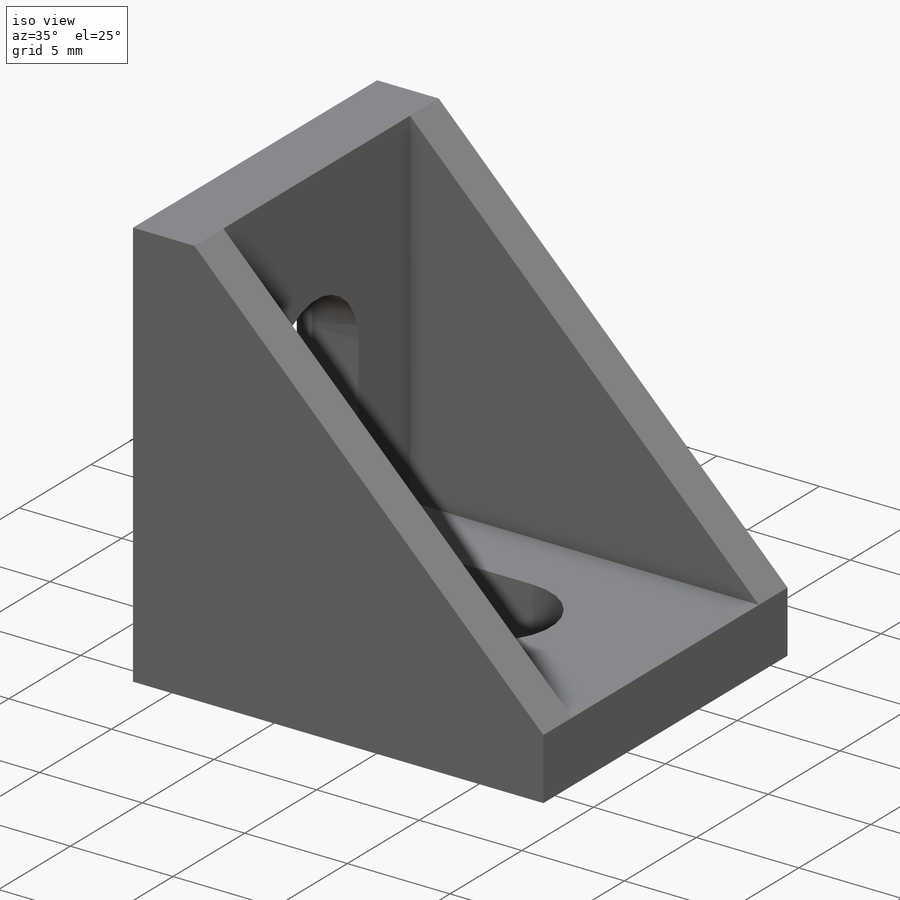
[diagram: iso view]
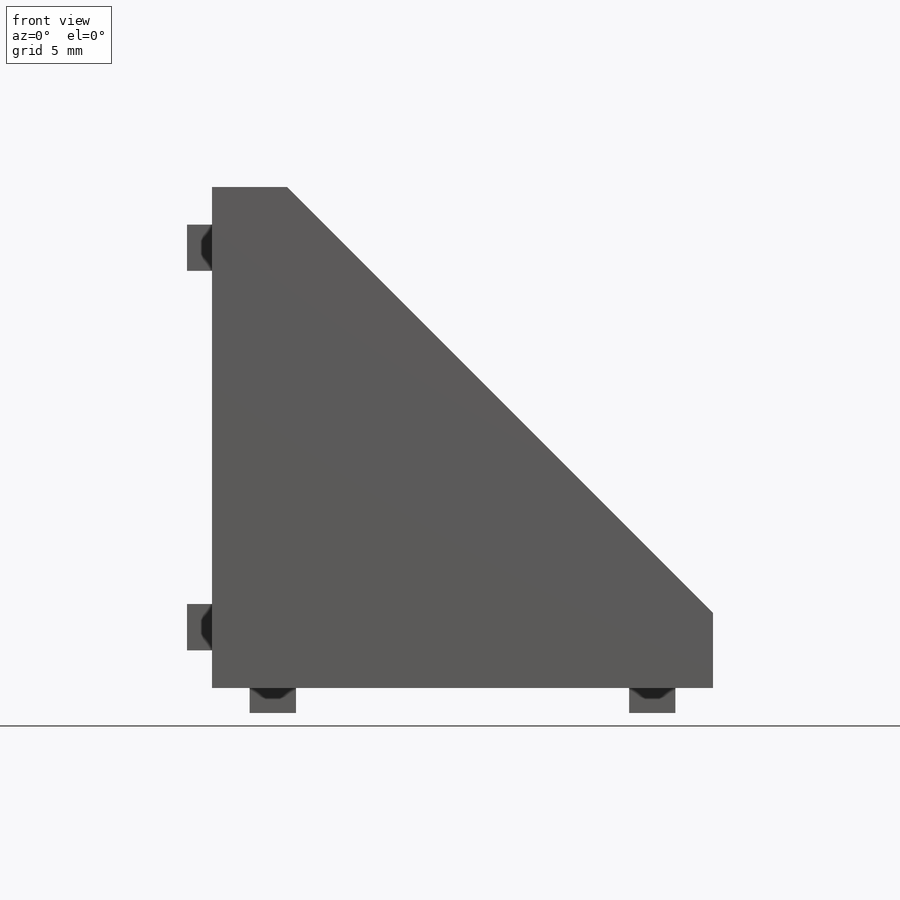
[diagram: front view]
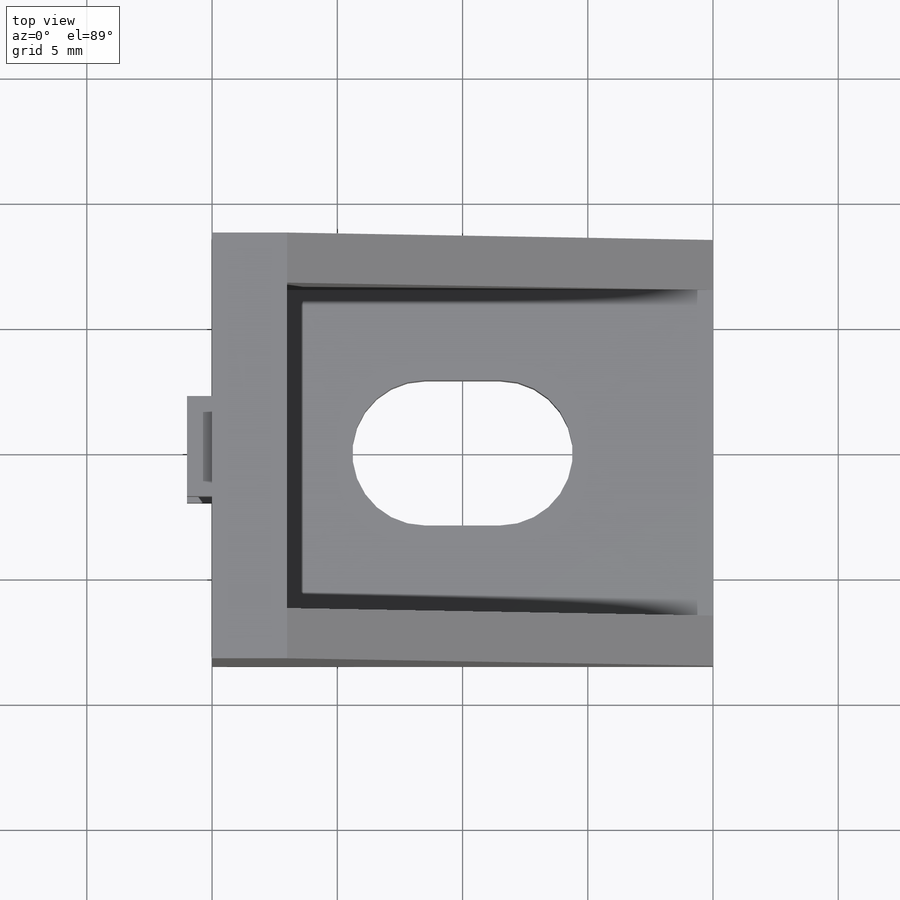
[diagram: top view]
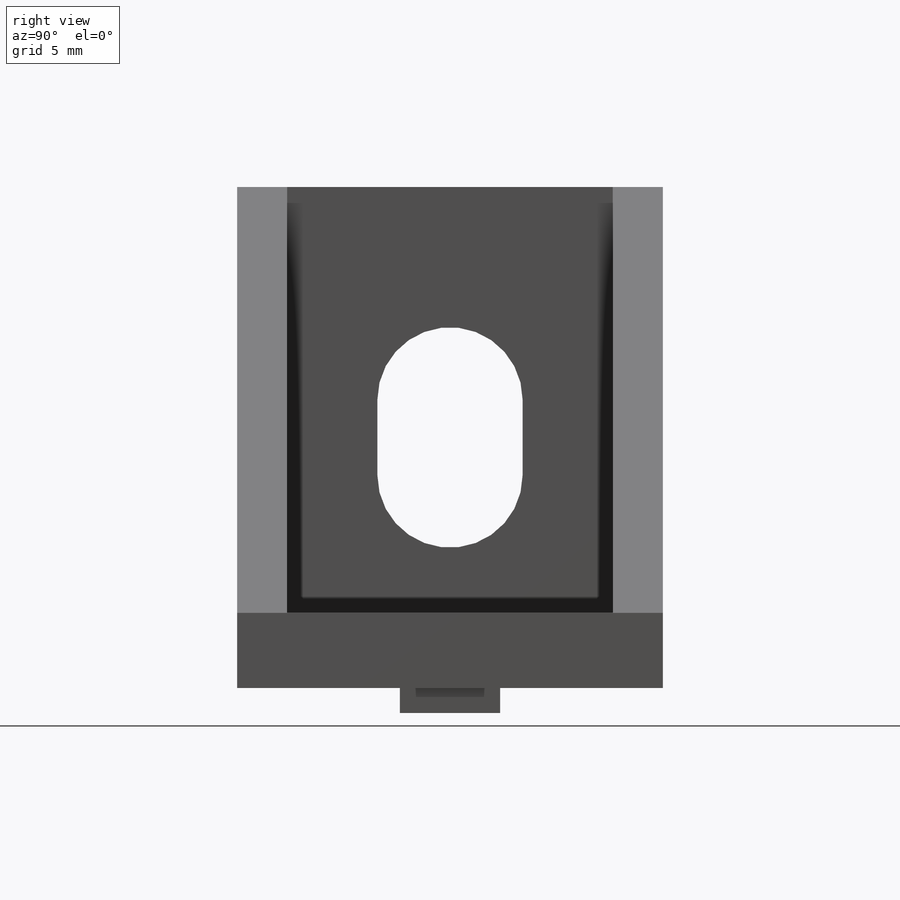
[diagram: right view]
SOLIDWORKS PART (.sldprt)
format: sldprt  version: not decoded by parser v0  size: 312,832 bytes
history: native  units: mm
features: sketch x7, cut_extrude x3, extrude x2, material x1 (+13 scaffold rows collapsed)
feature tree (26):
  scaffold x13  (default folders/planes/origin — collapsed)
  material  "6061-T6 (SS)"
  sketch  "Sketch1"  dims[D1=20.0mm D2=~16.122035mm D3=3.0mm]
  extrude  "Boss-Extrude1"  Depth=17mm
  sketch  "Sketch2"  dims[D1=2.0mm D2=3.0mm]
  cut_extrude  "Cut-Extrude1"  Depth=17mm
  sketch  "Sketch3"  dims[D1=5.8mm D2=3.0mm D3=8.5mm]
  cut_extrude  "Cut-Extrude2"  [1 undecoded]
  sketch  "Sketch5"  dims[c1.D1=5.8mm c1.D2=3.0mm c1.D3=8.5mm c2.D1=5.8mm c2.D2=3.0mm c2.D3=8.5mm]
  cut_extrude  "Cut-Extrude3"  [1 undecoded]
  sketch  "Sketch6"  dims[c1.D1=~9.842288mm c2.D1=45.0deg c2.D2=1.85mm c2.D3=1.0mm c2.D4=17.0mm]
  extrude  "Boss-Extrude2"  Depth=4mm
  sketch  "Sketch7"  dims[D1=10.0mm]
  sketch  "Sketch8"  dims[D1=10.0mm]
decode coverage: 10 of 12 modeling features carry decoded parameters
note: ~ marks probable driven/reference dimensions
note: 2 parameter values undecoded
note: suppression state not decoded; provenance and decode notes live in map.json
